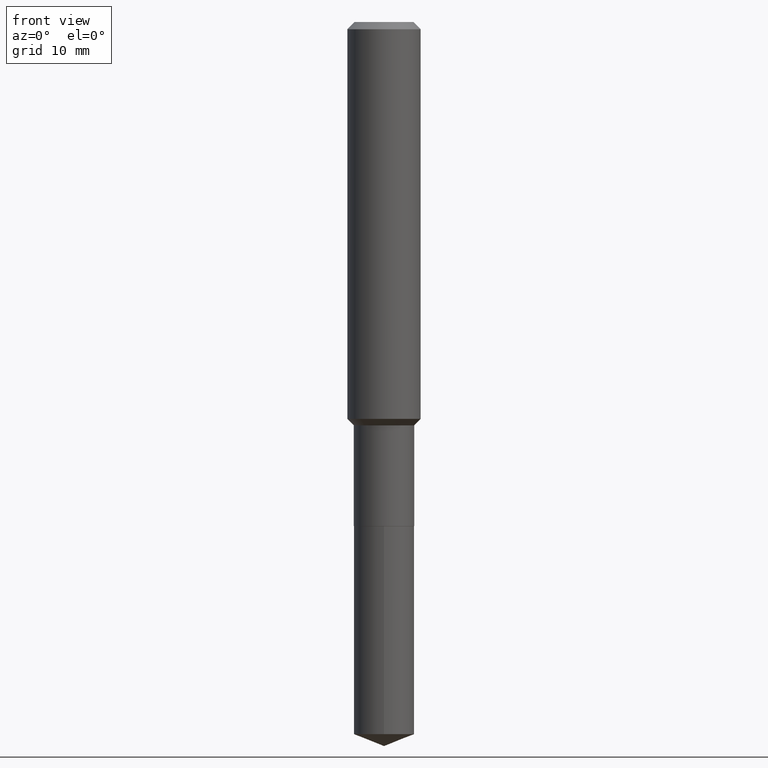
[diagram: clean part render]
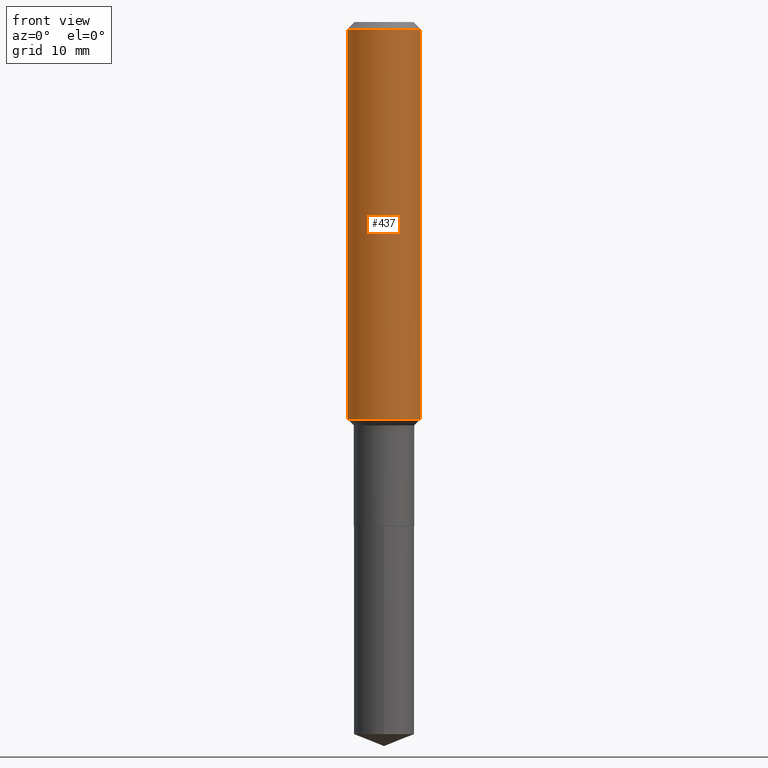
[diagram: same view with one face highlighted and labeled with its STEP entity id]
A machine part, front view. The second image highlights one B-rep face of the part: STEP entity #437.
In plain terms, the highlighted cylindrical surface (partial cylindrical patch) has radius 4.0005 mm, axis along (-0, 0, 1).
Its self-contained STEP definition (entity closure, byte-faithful):
#4 = ORIENTED_EDGE ( 'NONE', *, *, #140, .T. ) ;
#40 = EDGE_CURVE ( 'NONE', #138, #363, #482, .T. ) ;
#67 = DIRECTION ( 'NONE',  ( 1.000000000000000000, -6.982962677686265922E-15, 0.000000000000000000 ) ) ;
#72 = CARTESIAN_POINT ( 'NONE',  ( -0.1575000000000000011, -1.912373863628402067E-15, -0.03150000000000019451 ) ) ;
#75 = VERTEX_POINT ( 'NONE', #296 ) ;
#103 = CARTESIAN_POINT ( 'NONE',  ( -0.1575000000000000844, 1.119104808822158392E-15, -7.747322767151481189E-30 ) ) ;
#120 = DIRECTION ( 'NONE',  ( -2.445468806185136597E-29, 3.491481338843145583E-15, 1.000000000000000000 ) ) ;
#123 = CARTESIAN_POINT ( 'NONE',  ( 7.703226739483228723E-31, -1.099816621735597661E-16, -0.03150000000000019451 ) ) ;
#138 = VERTEX_POINT ( 'NONE', #298 ) ;
#140 = EDGE_CURVE ( 'NONE', #138, #394, #389, .T. ) ;
#152 = EDGE_LOOP ( 'NONE', ( #471, #4, #390, #264 ) ) ;
#155 = CARTESIAN_POINT ( 'NONE',  ( 0.1575000000000001954, -7.052792304463151308E-15, -1.705000000000000071 ) ) ;
#163 = VECTOR ( 'NONE', #225, 39.37007874015748143 ) ;
#192 = AXIS2_PLACEMENT_3D ( 'NONE', #326, #214, #477 ) ;
#212 = AXIS2_PLACEMENT_3D ( 'NONE', #222, #120, #369 ) ;
#214 = DIRECTION ( 'NONE',  ( -2.445468806185136597E-29, 3.491481338843145583E-15, 1.000000000000000000 ) ) ;
#222 = CARTESIAN_POINT ( 'NONE',  ( 0.000000000000000000, 0.000000000000000000, 0.000000000000000000 ) ) ;
#225 = DIRECTION ( 'NONE',  ( -2.445468806185136877E-29, 3.491481338843145188E-15, 1.000000000000000000 ) ) ;
#238 = VECTOR ( 'NONE', #286, 39.37007874015748143 ) ;
#246 = EDGE_CURVE ( 'NONE', #394, #75, #324, .T. ) ;
#264 = ORIENTED_EDGE ( 'NONE', *, *, #318, .F. ) ;
#286 = DIRECTION ( 'NONE',  ( -2.445468806185136877E-29, 3.491481338843145188E-15, 1.000000000000000000 ) ) ;
#288 = CIRCLE ( 'NONE', #353, 0.1575000000000000011 ) ;
#296 = CARTESIAN_POINT ( 'NONE',  ( 0.1575000000000000011, -1.209798283909146741E-15, -0.03150000000000019451 ) ) ;
#298 = CARTESIAN_POINT ( 'NONE',  ( -0.1575000000000001954, -4.833870873905404647E-15, -1.705000000000000071 ) ) ;
#318 = EDGE_CURVE ( 'NONE', #363, #75, #288, .T. ) ;
#324 = LINE ( 'NONE', #475, #238 ) ;
#326 = CARTESIAN_POINT ( 'NONE',  ( 4.169524314545657651E-29, -5.952975682727563039E-15, -1.705000000000000071 ) ) ;
#341 = FACE_OUTER_BOUND ( 'NONE', #152, .T. ) ;
#353 = AXIS2_PLACEMENT_3D ( 'NONE', #123, #367, #67 ) ;
#363 = VERTEX_POINT ( 'NONE', #72 ) ;
#367 = DIRECTION ( 'NONE',  ( -2.445468806185136597E-29, 3.491481338843145583E-15, 1.000000000000000000 ) ) ;
#369 = DIRECTION ( 'NONE',  ( 1.000000000000000000, -6.982962677686267499E-15, 4.876176775795936353E-29 ) ) ;
#389 = CIRCLE ( 'NONE', #192, 0.1575000000000001954 ) ;
#390 = ORIENTED_EDGE ( 'NONE', *, *, #246, .T. ) ;
#394 = VERTEX_POINT ( 'NONE', #155 ) ;
#424 = CYLINDRICAL_SURFACE ( 'NONE', #212, 0.1575000000000000844 ) ;
#437 = ADVANCED_FACE ( 'NONE', ( #341 ), #424, .T. ) ;
#471 = ORIENTED_EDGE ( 'NONE', *, *, #40, .F. ) ;
#475 = CARTESIAN_POINT ( 'NONE',  ( 0.1575000000000000844, -1.099816621735587677E-15, 7.679978421878603638E-30 ) ) ;
#477 = DIRECTION ( 'NONE',  ( 1.000000000000000000, -6.982962677686265922E-15, 0.000000000000000000 ) ) ;
#482 = LINE ( 'NONE', #103, #163 ) ;